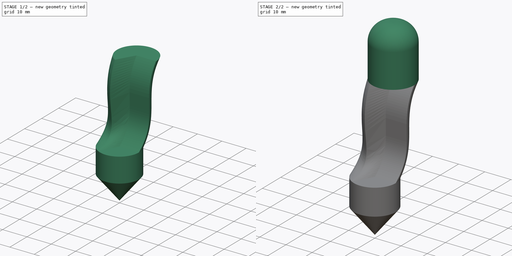
[diagram: build sequence overview — one tinted view per stage of 2, left to right]
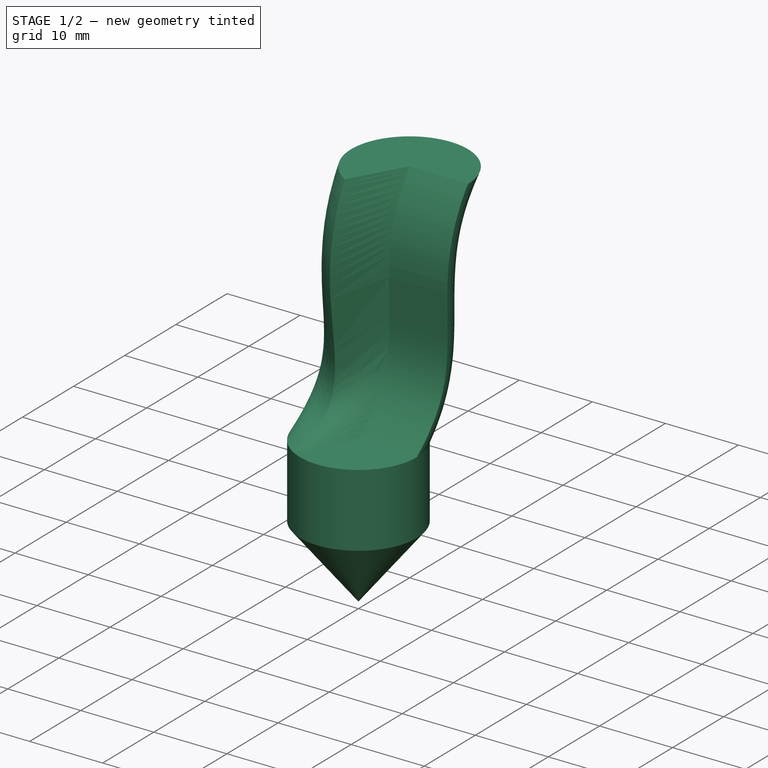
[diagram: stage 1 of 2 — iso view after this stage's code; geometry added in this stage tinted green]
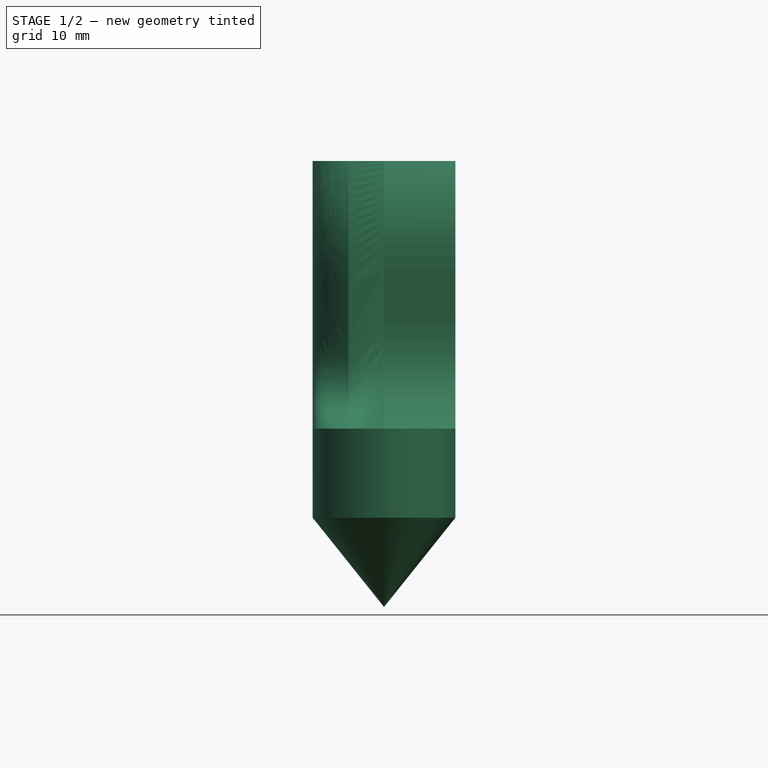
[diagram: stage 1 of 2 — front view after this stage's code; geometry added in this stage tinted green]
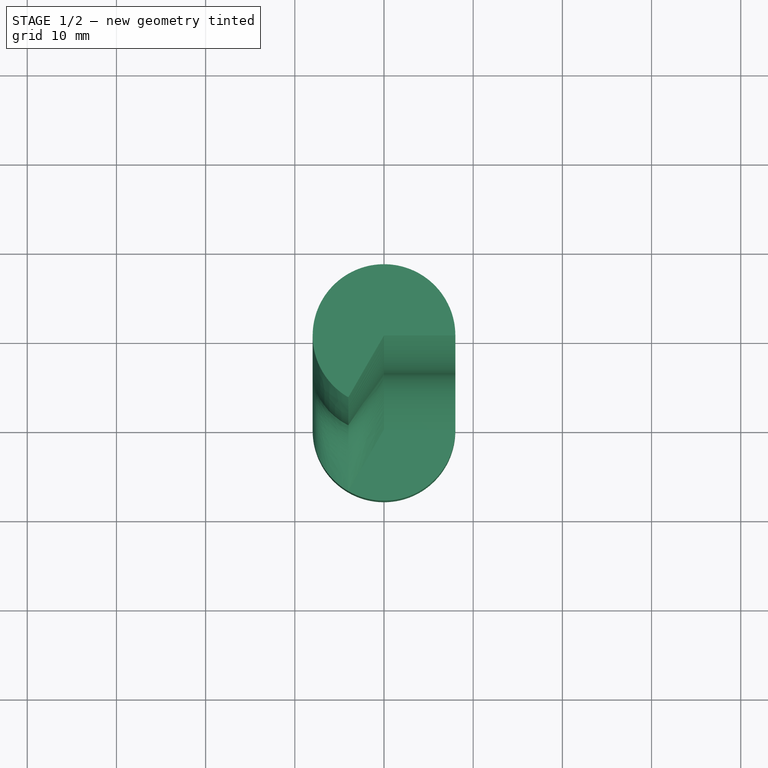
[diagram: stage 1 of 2 — top view after this stage's code; geometry added in this stage tinted green]
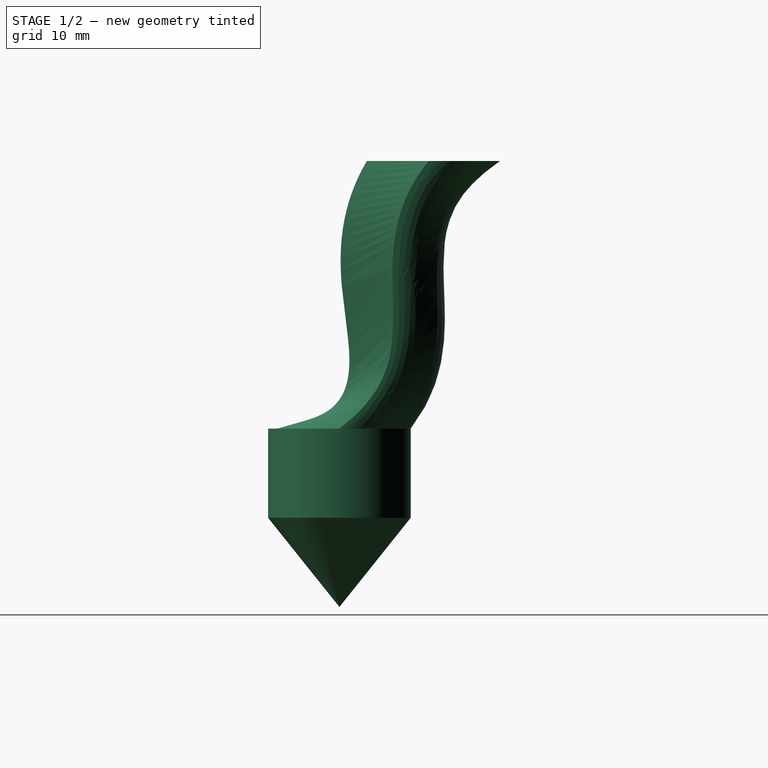
[diagram: stage 1 of 2 — right view after this stage's code; geometry added in this stage tinted green]
FCSTD DOCUMENT  (FreeCAD 0.18R4 (GitTag))
Label: l 10 q2
License: All rights reserved
LicenseURL: http://en.wikipedia.org/wiki/All_rights_reserved
objects: Sketcher::SketchObject×4, PartDesign::Revolution×1, PartDesign::Plane×1, PartDesign::AdditivePipe×1, PartDesign::Pad×1, PartDesign::Fillet×1, PartDesign::Body×1
note: 13 computed .brp shape members not serialized (recipe doc carries the construction recipe); baked Part::Feature solids carry a one-line shape summary decoded from their .brp

FEATURE [Sketcher::SketchObject] Sketch
  MapMode = 5
  Placement = pos=(0,0,0) rot=(1,0,0;1.5708rad)
  Support = -> [XZ_Plane]
  sketch-geometry (4):
    g0: LineSegment StartX=0 StartY=0 StartZ=0 EndX=0 EndY=20 EndZ=0
    g1: LineSegment StartX=0 StartY=20 StartZ=0 EndX=8 EndY=20 EndZ=0
    g2: LineSegment StartX=8 StartY=20 StartZ=0 EndX=8 EndY=10 EndZ=0
    g3: LineSegment StartX=8 StartY=10 StartZ=0 EndX=0 EndY=0 EndZ=0
  constraints (11):
    c: Coincident(g0,g1)
    c: Coincident(g1,g2)
    c: Coincident(g2,g3)
    c: Coincident(g0,g-1)
    c: Coincident(g3,g0)
    c: Vertical(g0)
    c: Vertical(g2)
    c: Horizontal(g1)
    c: Distance(g0) = 20
    c: Distance(g2) = 10
    c: Distance(g1) = 8
FEATURE [PartDesign::Revolution] Revolution
  Angle = 360
  Axis = (0,2e-16,1)
  Base = (0,0,0)
  Placement = pos=(0,0,0) rot=(1,0,0;1.5708rad)
  Profile = -> Sketch
  ReferenceAxis = -> Sketch [V_Axis]
  Reversed = true
FEATURE [Sketcher::SketchObject] Sketch001
  MapMode = 5
  Placement = pos=(0,1.32e-14,20) rot=(0,0,1;3.14159rad)
  Support = -> [Revolution]
  sketch-geometry (3):
    g0: LineSegment StartX=0 StartY=0 StartZ=0 EndX=-8 EndY=0 EndZ=0
    g1: LineSegment StartX=0 StartY=0 StartZ=0 EndX=4 EndY=6.9282 EndZ=0
    g2: ArcOfCircle CenterX=0 CenterY=0 CenterZ=0 NormalX=0 NormalY=0 NormalZ=1 AngleXU=0 Radius=8 StartAngle=3.14159 EndAngle=7.33038
  constraints (8):
    c: Coincident(g2,g-1)
    c: Coincident(g0,g2)
    c: Coincident(g1,g0)
    c: Coincident(g2,g0)
    c: Coincident(g2,g1)
    c: Horizontal(g0)
    c: Distance(g0) = 8
    c: Angle(g1,g0) = 2.0944
FEATURE [PartDesign::Plane] DatumPlane
  AttachmentOffset = pos=(2,0,0) rot=(0,1,0;1.5708rad)
  Length = 89.4657
  MapMode = 5
  Placement = pos=(-2,1.32e-14,20) rot=(-0.707107,0,0.707107;3.14159rad)
  ResizeMode = 0
  Support = -> [Revolution]
  Width = 37.4657
FEATURE [Sketcher::SketchObject] Sketch003
  MapMode = 5
  Placement = pos=(-2,1.32e-14,20) rot=(-0.707107,0,0.707107;3.14159rad)
  Support = -> [DatumPlane]
  sketch-geometry (7):
    g0-g3: Circle [constr] x4 (B-spline internal-alignment scaffolding for g4; pole/knot coordinates omitted)
    g4: BSplineCurve PolesCount=4 KnotsCount=2 Degree=3 IsPeriodic=0
    g5: GeomPoint [constr] X=0 Y=-3.4641 Z=0
    g6: GeomPoint [constr] X=-30 Y=-13.4641 Z=0
  constraints (13):
    c: Radius(g0) = 2
    c: Equal(g0,g1)
    c: Equal(g0,g2)
    c: Equal(g0,g3)
    c: InternalAlignment(g0-g3 -> g4) x4
    c: InternalAlignment(g5,g4)
    c: InternalAlignment(g6,g4)
    c: DistanceX(g1,g4) = 10
    c: DistanceY(g1,g4) = 10
    c: DistanceY(g4,g2) = 10
    c: DistanceX(g4,g2) = 10
    c: DistanceX(g2,g4) = 20
    c: DistanceY(g2,g4) = 0
FEATURE [PartDesign::AdditivePipe] AdditivePipe
  AuxilleryCurvelinear = true
  AuxillerySpineTangent = false
  BaseFeature = -> Revolution
  Binormal = (0,0,0)
  Mode = 0
  Placement = pos=(0,0,0) rot=(1,0,0;1.5708rad)
  Profile = -> Sketch001
  Spine = -> Sketch003 [Edge1]
  SpineTangent = false
  Transformation = 0
  Transition = 0
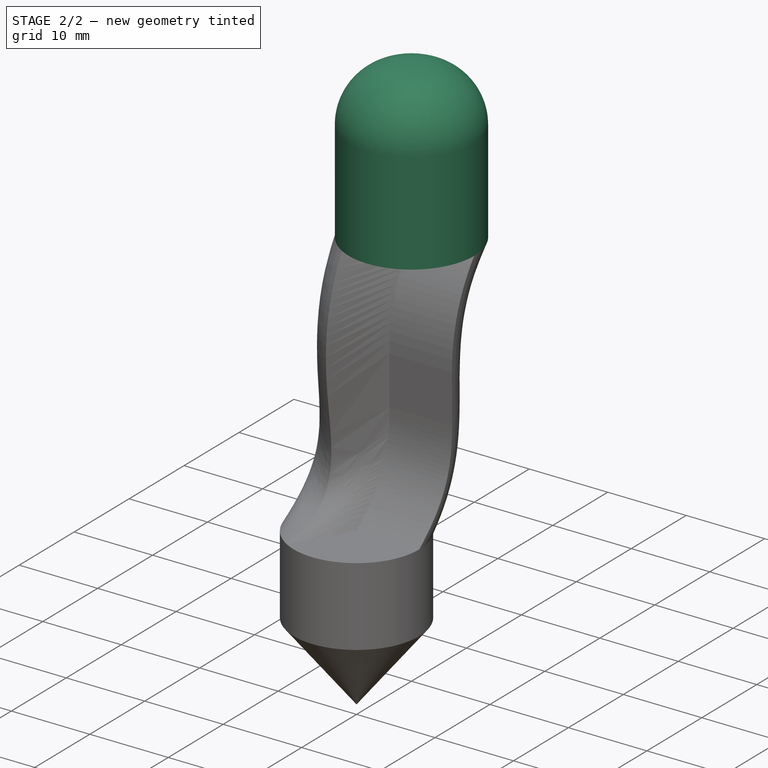
[diagram: stage 2 of 2 — iso view after this stage's code; geometry added in this stage tinted green]
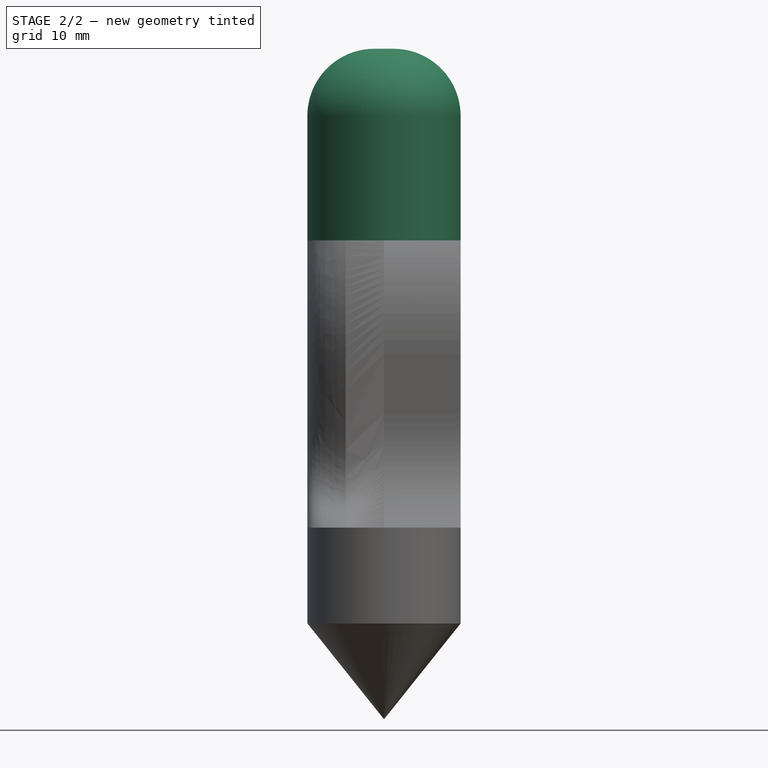
[diagram: stage 2 of 2 — front view after this stage's code; geometry added in this stage tinted green]
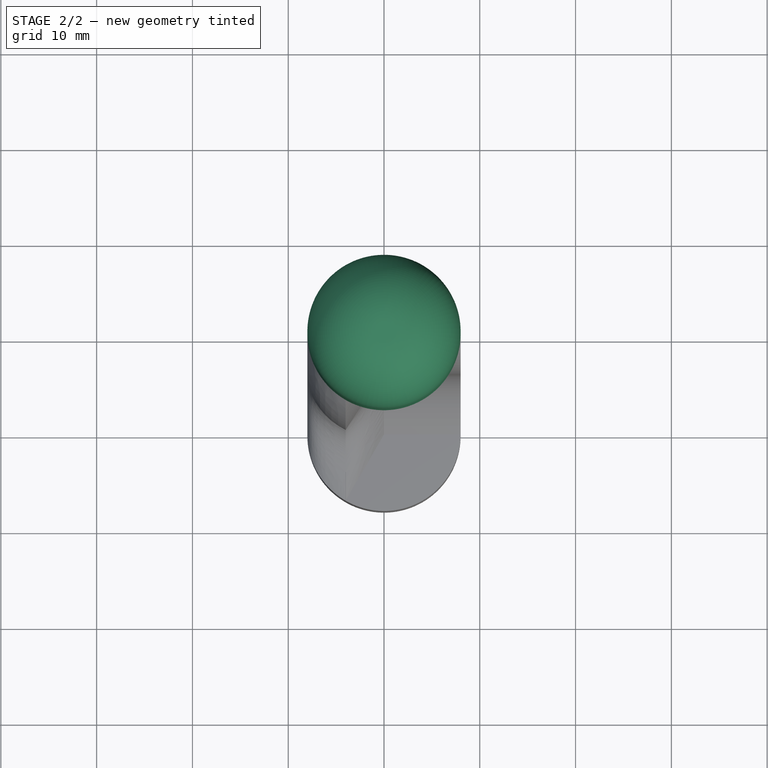
[diagram: stage 2 of 2 — top view after this stage's code; geometry added in this stage tinted green]
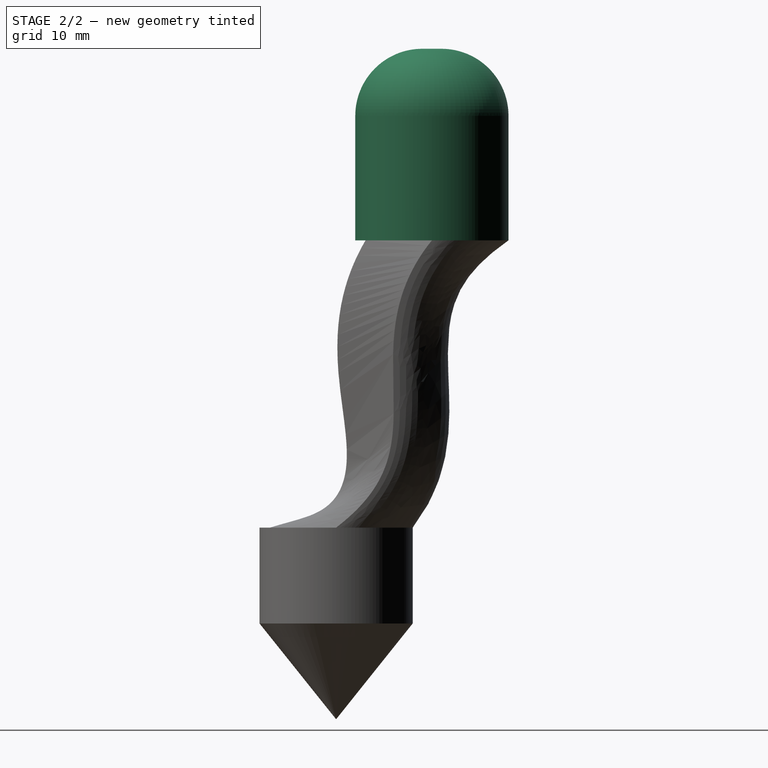
[diagram: stage 2 of 2 — right view after this stage's code; geometry added in this stage tinted green]
FEATURE [Sketcher::SketchObject] Sketch004
  ExternalGeometry = -> [AdditivePipe]
  MapMode = 5
  Placement = pos=(-1.25e-14,6.46e-14,50) rot=(0,0,1;3.14159rad)
  Support = -> [AdditivePipe]
  sketch-geometry (1):
    g0: Circle CenterX=-1.78e-14 CenterY=-10 CenterZ=0 NormalX=0 NormalY=0 NormalZ=1 AngleXU=0 Radius=8
  constraints (2):
    c: Coincident(g0,g-3)
    c: Radius(g0) = 8
FEATURE [PartDesign::Pad] Pad
  BaseFeature = -> AdditivePipe
  Length = 20
  Length2 = 100
  Placement = pos=(0,0,0) rot=(1,0,0;1.5708rad)
  Profile = -> Sketch004
  Type = 0
FEATURE [PartDesign::Fillet] Fillet
  Base = -> Pad [Edge18]
  BaseFeature = -> Pad
  Placement = pos=(0,0,0) rot=(1,0,0;1.5708rad)
  Radius = 7
FEATURE [PartDesign::Body] Body
  Group = -> [Sketch,Revolution,Sketch001,DatumPlane,Sketch003,AdditivePipe,Sketch004,Pad,Fillet]
  Origin = -> Origin
  Tip = -> Fillet
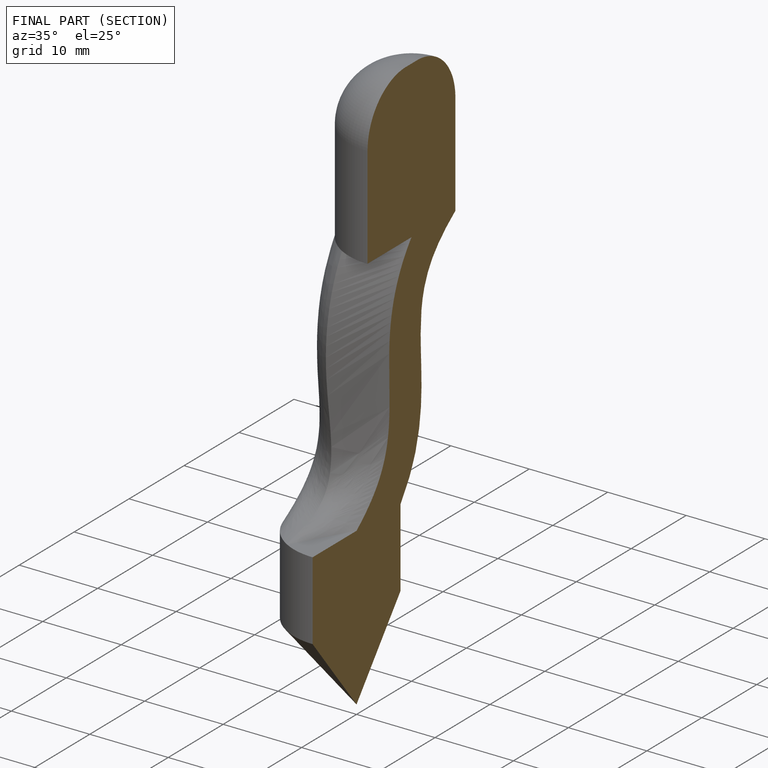
[diagram: finished part — half-section view (interior)]
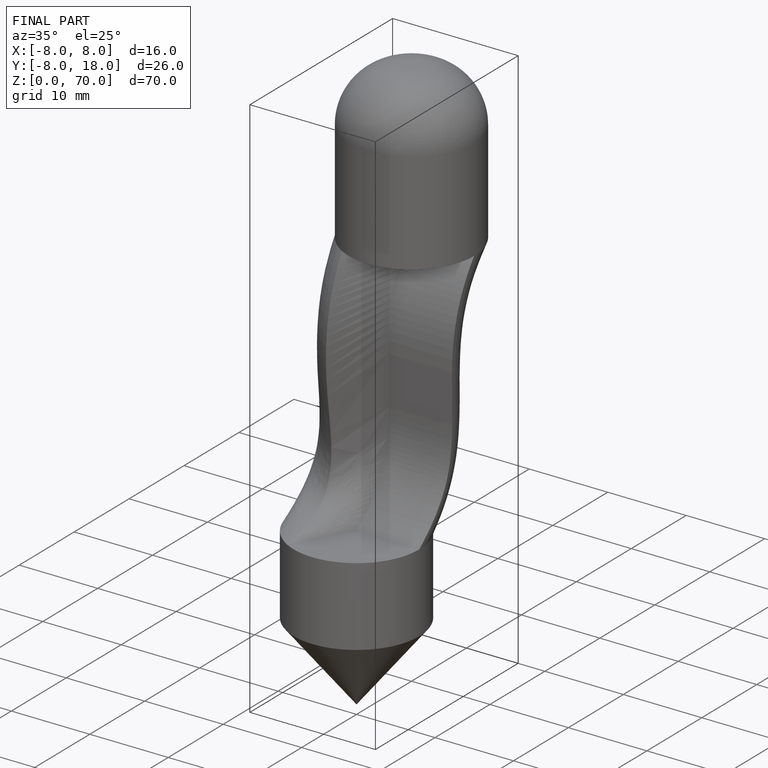
[diagram: finished part — iso view with bounding-box wireframe]
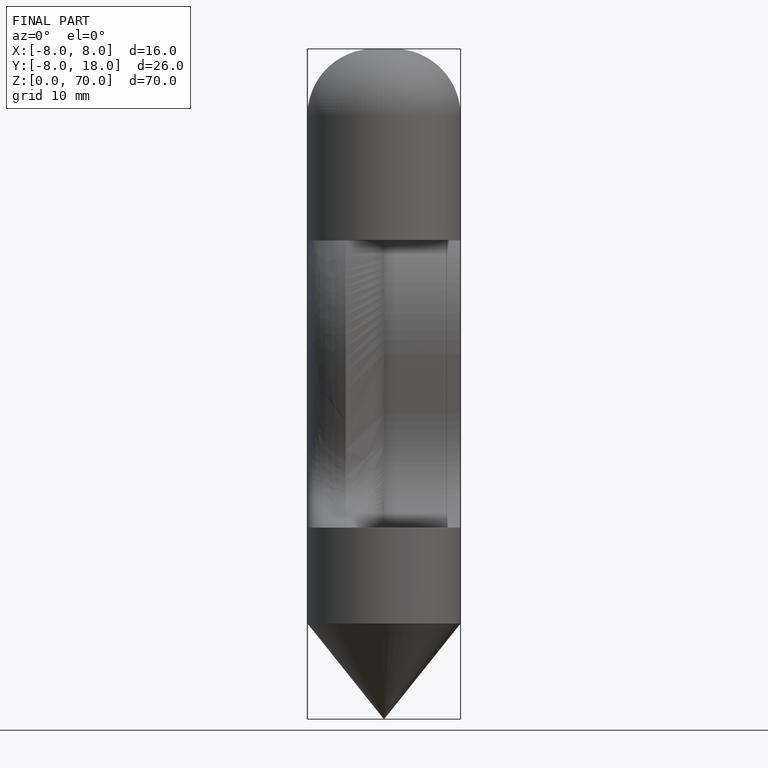
[diagram: finished part — front view with bounding-box wireframe]
